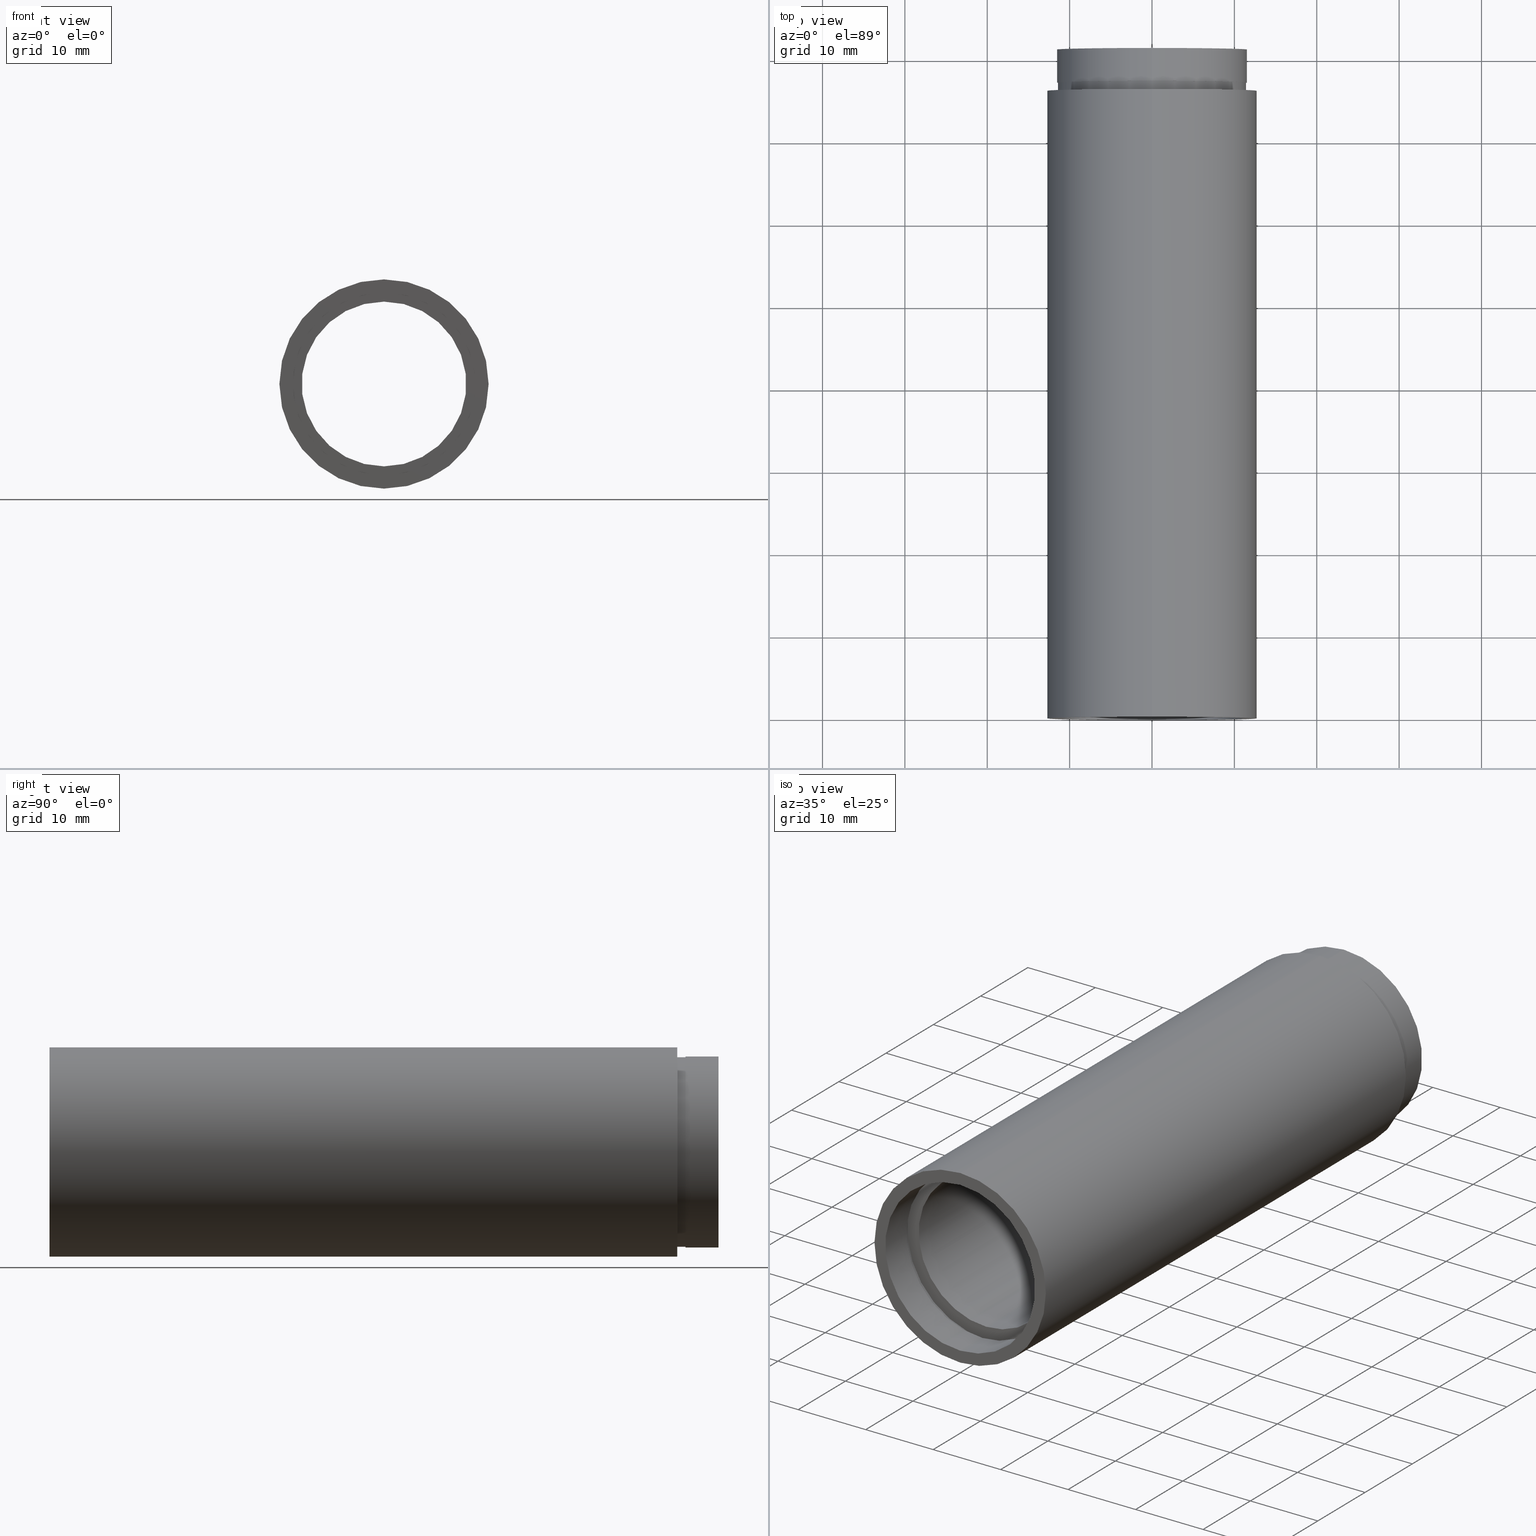
[diagram: canonical four-view strip — front | top / right | iso, engineering-drawing reading convention]
A machine part, canonical four-view strip (front | top / right | iso — engineering-drawing reading convention). The complete STEP part file that produces these views, byte-faithful:
ISO-10303-21;
HEADER;
FILE_DESCRIPTION (( 'STEP AP214' ),
    '1' );
FILE_NAME ('503055.STEP',
    '2019-09-09T01:36:41',
    ( '' ),
    ( '' ),
    'SwSTEP 2.0',
    'SolidWorks 2016',
    '' );
FILE_SCHEMA (( 'AUTOMOTIVE_DESIGN' ));
ENDSEC;

DATA;
#1 = PRESENTATION_STYLE_ASSIGNMENT (( #49 ) ) ;
#2 = DIRECTION ( 'NONE',  ( -0.0000000000000000000, 1.000000000000000000, -0.0000000000000000000 ) ) ;
#3 = ADVANCED_FACE ( 'NONE', ( #408 ), #512, .T. ) ;
#4 = STYLED_ITEM ( 'NONE', ( #308 ), #467 ) ;
#5 = ORIENTED_EDGE ( 'NONE', *, *, #114, .F. ) ;
#6 = DIRECTION ( 'NONE',  ( 0.0000000000000000000, 0.0000000000000000000, 1.000000000000000000 ) ) ;
#7 = CARTESIAN_POINT ( 'NONE',  ( 0.0000000000000000000, 161.3761669434274500, 0.0000000000000000000 ) ) ;
#8 = ORIENTED_EDGE ( 'NONE', *, *, #79, .T. ) ;
#9 = AXIS2_PLACEMENT_3D ( 'NONE', #69, #215, #347 ) ;
#10 = FACE_OUTER_BOUND ( 'NONE', #620, .T. ) ;
#11 = FILL_AREA_STYLE_COLOUR ( '', #134 ) ;
#12 = DIRECTION ( 'NONE',  ( -0.0000000000000000000, 1.000000000000000000, -0.0000000000000000000 ) ) ;
#13 = CIRCLE ( 'NONE', #193, 12.70000000000002100 ) ;
#14 = PRESENTATION_LAYER_ASSIGNMENT (  '', '', ( #363 ) ) ;
#15 = EDGE_CURVE ( 'NONE', #584, #594, #533, .T. ) ;
#16 = CARTESIAN_POINT ( 'NONE',  ( 0.0000000000000000000, 5.499999999999976900, 0.0000000000000000000 ) ) ;
#17 = ORIENTED_EDGE ( 'NONE', *, *, #432, .F. ) ;
#18 = DIRECTION ( 'NONE',  ( 0.0000000000000000000, -0.0000000000000000000, -1.000000000000000000 ) ) ;
#19 = ORIENTED_EDGE ( 'NONE', *, *, #387, .T. ) ;
#20 = CIRCLE ( 'NONE', #210, 11.10000000000001700 ) ;
#21 = AXIS2_PLACEMENT_3D ( 'NONE', #40, #43, #260 ) ;
#22 = EDGE_LOOP ( 'NONE', ( #410, #183, #547, #597 ) ) ;
#23 = CARTESIAN_POINT ( 'NONE',  ( 0.0000000000000000000, 5.499999999999976900, 0.0000000000000000000 ) ) ;
#24 = AXIS2_PLACEMENT_3D ( 'NONE', #325, #87, #369 ) ;
#25 = FACE_BOUND ( 'NONE', #529, .T. ) ;
#26 = VECTOR ( 'NONE', #583, 1000.000000000000000 ) ;
#27 = DIRECTION ( 'NONE',  ( -0.0000000000000000000, 1.000000000000000000, -0.0000000000000000000 ) ) ;
#28 = CARTESIAN_POINT ( 'NONE',  ( 0.0000000000000000000, -2.775557561562891400E-014, 0.0000000000000000000 ) ) ;
#29 = EDGE_LOOP ( 'NONE', ( #517, #451, #502, #175 ) ) ;
#30 = EDGE_CURVE ( 'NONE', #298, #33, #402, .T. ) ;
#31 = DIRECTION ( 'NONE',  ( 0.0000000000000000000, 0.0000000000000000000, 1.000000000000000000 ) ) ;
#32 = VERTEX_POINT ( 'NONE', #245 ) ;
#33 = VERTEX_POINT ( 'NONE', #523 ) ;
#34 = FACE_OUTER_BOUND ( 'NONE', #464, .T. ) ;
#35 = CARTESIAN_POINT ( 'NONE',  ( 0.0000000000000000000, 81.19999999999998900, 0.0000000000000000000 ) ) ;
#36 =( NAMED_UNIT ( * ) SI_UNIT ( $, .STERADIAN. ) SOLID_ANGLE_UNIT ( ) );
#37 = VERTEX_POINT ( 'NONE', #304 ) ;
#38 =( GEOMETRIC_REPRESENTATION_CONTEXT ( 3 ) GLOBAL_UNCERTAINTY_ASSIGNED_CONTEXT ( ( #212 ) ) GLOBAL_UNIT_ASSIGNED_CONTEXT ( ( #140, #192, #466 ) ) REPRESENTATION_CONTEXT ( 'NONE', 'WORKASPACE' ) );
#39 = ORIENTED_EDGE ( 'NONE', *, *, #377, .F. ) ;
#40 = CARTESIAN_POINT ( 'NONE',  ( 0.0000000000000000000, 161.3761669434274500, 0.0000000000000000000 ) ) ;
#41 = COLOUR_RGB ( '',1.000000000000000000, 1.000000000000000000, 1.000000000000000000 ) ;
#42 = EDGE_LOOP ( 'NONE', ( #457, #103, #111, #75 ) ) ;
#43 = DIRECTION ( 'NONE',  ( -0.0000000000000000000, 1.000000000000000000, -0.0000000000000000000 ) ) ;
#44 = STYLED_ITEM ( 'NONE', ( #371 ), #219 ) ;
#45 = COLOUR_RGB ( '',1.000000000000000000, 1.000000000000000000, 1.000000000000000000 ) ;
#46 = ORIENTED_EDGE ( 'NONE', *, *, #414, .T. ) ;
#47 = ADVANCED_FACE ( 'NONE', ( #265 ), #314, .F. ) ;
#48 = CARTESIAN_POINT ( 'NONE',  ( 11.10000000000001700, -1.580543700394483700E-014, 0.0000000000000000000 ) ) ;
#49 = SURFACE_STYLE_USAGE ( .BOTH. , #195 ) ;
#50 = STYLED_ITEM ( 'NONE', ( #71 ), #93 ) ;
#51 = EDGE_LOOP ( 'NONE', ( #409, #391, #19, #224 ) ) ;
#52 = PLANE ( 'NONE',  #404 ) ;
#53 = DIRECTION ( 'NONE',  ( -0.0000000000000000000, 1.000000000000000000, -0.0000000000000000000 ) ) ;
#54 = FACE_OUTER_BOUND ( 'NONE', #216, .T. ) ;
#55 = VERTEX_POINT ( 'NONE', #343 ) ;
#56 = CIRCLE ( 'NONE', #588, 10.00000000000002000 ) ;
#57 = UNCERTAINTY_MEASURE_WITH_UNIT (LENGTH_MEASURE( 1.000000000000000100E-005 ), #388, 'distance_accuracy_value', 'NONE');
#58 = PRODUCT_DEFINITION_FORMATION_WITH_SPECIFIED_SOURCE ( '�κ�', '', #554, .NOT_KNOWN. ) ;
#59 =( NAMED_UNIT ( * ) SI_UNIT ( $, .STERADIAN. ) SOLID_ANGLE_UNIT ( ) );
#60 = VECTOR ( 'NONE', #273, 1000.000000000000000 ) ;
#61 = FILL_AREA_STYLE_COLOUR ( '', #41 ) ;
#62 =( NAMED_UNIT ( * ) PLANE_ANGLE_UNIT ( ) SI_UNIT ( $, .RADIAN. ) );
#63 = SHAPE_DEFINITION_REPRESENTATION ( #135, #219 ) ;
#64 = ADVANCED_FACE ( 'NONE', ( #112, #532 ), #435, .F. ) ;
#65 = AXIS2_PLACEMENT_3D ( 'NONE', #7, #53, #205 ) ;
#66 = DIRECTION ( 'NONE',  ( 1.000000000000000000, 0.0000000000000000000, 0.0000000000000000000 ) ) ;
#67 = CARTESIAN_POINT ( 'NONE',  ( 0.0000000000000000000, 5.499999999999976900, 0.0000000000000000000 ) ) ;
#68 = FACE_OUTER_BOUND ( 'NONE', #419, .T. ) ;
#69 = CARTESIAN_POINT ( 'NONE',  ( 0.0000000000000000000, 4.499999999999976000, 0.0000000000000000000 ) ) ;
#70 = DIRECTION ( 'NONE',  ( -0.0000000000000000000, 1.000000000000000000, -0.0000000000000000000 ) ) ;
#71 = PRESENTATION_STYLE_ASSIGNMENT (( #342 ) ) ;
#72 = PRESENTATION_STYLE_ASSIGNMENT (( #267 ) ) ;
#73 = EDGE_CURVE ( 'NONE', #230, #543, #56, .T. ) ;
#74 = CARTESIAN_POINT ( 'NONE',  ( 0.0000000000000000000, 4.499999999999976000, 11.10000000000001700 ) ) ;
#75 = ORIENTED_EDGE ( 'NONE', *, *, #196, .T. ) ;
#76 = CARTESIAN_POINT ( 'NONE',  ( 0.0000000000000000000, 4.499999999999976000, 11.70000000000001900 ) ) ;
#77 = MECHANICAL_DESIGN_GEOMETRIC_PRESENTATION_REPRESENTATION (  '', ( #4 ), #609 ) ;
#78 = UNCERTAINTY_MEASURE_WITH_UNIT (LENGTH_MEASURE( 1.000000000000000100E-005 ), #617, 'distance_accuracy_value', 'NONE');
#79 = EDGE_CURVE ( 'NONE', #33, #298, #613, .T. ) ;
#80 = CARTESIAN_POINT ( 'NONE',  ( 1.420590287010930900E-015, 161.3761669434274500, -11.60000000000001000 ) ) ;
#81 = CIRCLE ( 'NONE', #514, 12.70000000000002100 ) ;
#82 = DIRECTION ( 'NONE',  ( -0.0000000000000000000, 1.000000000000000000, -0.0000000000000000000 ) ) ;
#83 = ORIENTED_EDGE ( 'NONE', *, *, #261, .F. ) ;
#84 = DIRECTION ( 'NONE',  ( 0.0000000000000000000, 0.0000000000000000000, 1.000000000000000000 ) ) ;
#85 = PRESENTATION_LAYER_ASSIGNMENT (  '', '', ( #50 ) ) ;
#86 = COLOUR_RGB ( '',1.000000000000000000, 1.000000000000000000, 1.000000000000000000 ) ;
#87 = DIRECTION ( 'NONE',  ( -0.0000000000000000000, 1.000000000000000000, -0.0000000000000000000 ) ) ;
#88 = ORIENTED_EDGE ( 'NONE', *, *, #209, .T. ) ;
#89 = VERTEX_POINT ( 'NONE', #297 ) ;
#90 = AXIS2_PLACEMENT_3D ( 'NONE', #599, #352, #497 ) ;
#91 = CIRCLE ( 'NONE', #382, 11.60000000000001000 ) ;
#92 = EDGE_LOOP ( 'NONE', ( #88, #303 ) ) ;
#93 = ADVANCED_FACE ( 'NONE', ( #54 ), #284, .F. ) ;
#94 = STYLED_ITEM ( 'NONE', ( #417 ), #579 ) ;
#95 = CARTESIAN_POINT ( 'NONE',  ( 0.0000000000000000000, 5.499999999999976900, 10.00000000000002000 ) ) ;
#96 = COLOUR_RGB ( '',1.000000000000000000, 1.000000000000000000, 1.000000000000000000 ) ;
#97 = ADVANCED_FACE ( 'NONE', ( #10 ), #149, .T. ) ;
#98 = ORIENTED_EDGE ( 'NONE', *, *, #291, .F. ) ;
#99 = DIRECTION ( 'NONE',  ( -0.0000000000000000000, 1.000000000000000000, -0.0000000000000000000 ) ) ;
#100 = ADVANCED_FACE ( 'NONE', ( #187, #496 ), #587, .F. ) ;
#101 = DIRECTION ( 'NONE',  ( 0.0000000000000000000, 0.0000000000000000000, 1.000000000000000000 ) ) ;
#102 = AXIS2_PLACEMENT_3D ( 'NONE', #431, #534, #302 ) ;
#103 = ORIENTED_EDGE ( 'NONE', *, *, #185, .F. ) ;
#104 =( NAMED_UNIT ( * ) SI_UNIT ( $, .STERADIAN. ) SOLID_ANGLE_UNIT ( ) );
#105 = CARTESIAN_POINT ( 'NONE',  ( 0.0000000000000000000, 77.19999999999998900, 0.0000000000000000000 ) ) ;
#106 = APPLICATION_PROTOCOL_DEFINITION ( 'draft international standard', 'automotive_design', 1998, #430 ) ;
#107 = CARTESIAN_POINT ( 'NONE',  ( 0.0000000000000000000, 5.499999999999976900, 11.70000000000001900 ) ) ;
#108 = PRESENTATION_STYLE_ASSIGNMENT (( #415 ) ) ;
#109 = ORIENTED_EDGE ( 'NONE', *, *, #209, .F. ) ;
#110 = CARTESIAN_POINT ( 'NONE',  ( 0.0000000000000000000, 161.3761669434274500, 11.10000000000001700 ) ) ;
#111 = ORIENTED_EDGE ( 'NONE', *, *, #552, .T. ) ;
#112 = FACE_BOUND ( 'NONE', #553, .T. ) ;
#113 = FACE_BOUND ( 'NONE', #326, .T. ) ;
#114 = EDGE_CURVE ( 'NONE', #470, #298, #295, .T. ) ;
#115 = CARTESIAN_POINT ( 'NONE',  ( 1.408343819019457600E-015, 161.3761669434274500, -11.50000000000001100 ) ) ;
#116 = ORIENTED_EDGE ( 'NONE', *, *, #124, .F. ) ;
#117 = CARTESIAN_POINT ( 'NONE',  ( 0.0000000000000000000, -2.775557561562891400E-014, 11.10000000000001700 ) ) ;
#118 = LINE ( 'NONE', #582, #616 ) ;
#119 = CARTESIAN_POINT ( 'NONE',  ( 0.0000000000000000000, 81.19999999999998900, 11.60000000000001000 ) ) ;
#120 = AXIS2_PLACEMENT_3D ( 'NONE', #23, #350, #595 ) ;
#121 = CARTESIAN_POINT ( 'NONE',  ( 0.0000000000000000000, 161.3761669434274500, 10.00000000000002000 ) ) ;
#122 = ORIENTED_EDGE ( 'NONE', *, *, #220, .T. ) ;
#123 = DIRECTION ( 'NONE',  ( -0.0000000000000000000, 1.000000000000000000, -0.0000000000000000000 ) ) ;
#124 = EDGE_CURVE ( 'NONE', #470, #89, #324, .T. ) ;
#125 = DIRECTION ( 'NONE',  ( -0.0000000000000000000, 1.000000000000000000, -0.0000000000000000000 ) ) ;
#126 = VECTOR ( 'NONE', #438, 1000.000000000000000 ) ;
#127 = CYLINDRICAL_SURFACE ( 'NONE', #24, 12.70000000000002100 ) ;
#128 = SURFACE_STYLE_USAGE ( .BOTH. , #562 ) ;
#129 = AXIS2_PLACEMENT_3D ( 'NONE', #144, #2, #280 ) ;
#130 = AXIS2_PLACEMENT_3D ( 'NONE', #186, #475, #84 ) ;
#131 = ORIENTED_EDGE ( 'NONE', *, *, #327, .F. ) ;
#132 = DIRECTION ( 'NONE',  ( 0.0000000000000000000, 0.0000000000000000000, 1.000000000000000000 ) ) ;
#133 = VERTEX_POINT ( 'NONE', #107 ) ;
#134 = COLOUR_RGB ( '',1.000000000000000000, 1.000000000000000000, 1.000000000000000000 ) ;
#135 = PRODUCT_DEFINITION_SHAPE ( 'NONE', 'NONE',  #516 ) ;
#136 = AXIS2_PLACEMENT_3D ( 'NONE', #105, #12, #253 ) ;
#137 = CARTESIAN_POINT ( 'NONE',  ( 1.408343819019457600E-015, 77.19999999999998900, -11.50000000000001100 ) ) ;
#138 = CYLINDRICAL_SURFACE ( 'NONE', #227, 11.10000000000001700 ) ;
#139 = VECTOR ( 'NONE', #311, 1000.000000000000000 ) ;
#140 =( LENGTH_UNIT ( ) NAMED_UNIT ( * ) SI_UNIT ( .MILLI., .METRE. ) );
#141 = EDGE_LOOP ( 'NONE', ( #312, #39 ) ) ;
#142 = AXIS2_PLACEMENT_3D ( 'NONE', #372, #573, #421 ) ;
#143 = VECTOR ( 'NONE', #313, 1000.000000000000000 ) ;
#144 = CARTESIAN_POINT ( 'NONE',  ( 0.0000000000000000000, 161.3761669434274500, 0.0000000000000000000 ) ) ;
#145 = SURFACE_SIDE_STYLE ('',( #172 ) ) ;
#146 = EDGE_CURVE ( 'NONE', #561, #340, #383, .T. ) ;
#147 = DIRECTION ( 'NONE',  ( -0.0000000000000000000, 1.000000000000000000, -0.0000000000000000000 ) ) ;
#148 = MECHANICAL_DESIGN_GEOMETRIC_PRESENTATION_REPRESENTATION (  '', ( #363 ), #506 ) ;
#149 = CYLINDRICAL_SURFACE ( 'NONE', #65, 11.50000000000001100 ) ;
#150 = CARTESIAN_POINT ( 'NONE',  ( 1.432836755002405700E-015, 5.499999999999976900, -11.70000000000001900 ) ) ;
#151 = CARTESIAN_POINT ( 'NONE',  ( 0.0000000000000000000, 81.19999999999998900, 0.0000000000000000000 ) ) ;
#152 = VECTOR ( 'NONE', #264, 1000.000000000000000 ) ;
#153 = CIRCLE ( 'NONE', #351, 11.50000000000001100 ) ;
#154 = ORIENTED_EDGE ( 'NONE', *, *, #177, .F. ) ;
#155 = CARTESIAN_POINT ( 'NONE',  ( 0.0000000000000000000, 81.19999999999998900, 0.0000000000000000000 ) ) ;
#156 = ORIENTED_EDGE ( 'NONE', *, *, #614, .T. ) ;
#157 = DIRECTION ( 'NONE',  ( 0.0000000000000000000, 0.0000000000000000000, 1.000000000000000000 ) ) ;
#158 = EDGE_CURVE ( 'NONE', #361, #32, #202, .T. ) ;
#159 =( LENGTH_UNIT ( ) NAMED_UNIT ( * ) SI_UNIT ( .MILLI., .METRE. ) );
#160 = CARTESIAN_POINT ( 'NONE',  ( 1.555301434917141000E-015, 161.3761669434274500, -12.70000000000002100 ) ) ;
#161 = EDGE_CURVE ( 'NONE', #584, #287, #550, .T. ) ;
#162 = CARTESIAN_POINT ( 'NONE',  ( 0.0000000000000000000, 77.19999999999998900, 0.0000000000000000000 ) ) ;
#163 = ORIENTED_EDGE ( 'NONE', *, *, #443, .T. ) ;
#164 =( LENGTH_UNIT ( ) NAMED_UNIT ( * ) SI_UNIT ( .MILLI., .METRE. ) );
#165 = AXIS2_PLACEMENT_3D ( 'NONE', #441, #537, #578 ) ;
#166 = AXIS2_PLACEMENT_3D ( 'NONE', #458, #564, #132 ) ;
#167 = ORIENTED_EDGE ( 'NONE', *, *, #432, .T. ) ;
#168 = DIRECTION ( 'NONE',  ( 0.0000000000000000000, 0.0000000000000000000, 1.000000000000000000 ) ) ;
#169 = VECTOR ( 'NONE', #328, 1000.000000000000000 ) ;
#170 = DIRECTION ( 'NONE',  ( -0.0000000000000000000, 1.000000000000000000, -0.0000000000000000000 ) ) ;
#171 = ORIENTED_EDGE ( 'NONE', *, *, #161, .T. ) ;
#172 = SURFACE_STYLE_FILL_AREA ( #440 ) ;
#173 = EDGE_CURVE ( 'NONE', #361, #331, #376, .T. ) ;
#174 = CARTESIAN_POINT ( 'NONE',  ( 0.0000000000000000000, -2.775557561562891400E-014, 0.0000000000000000000 ) ) ;
#175 = ORIENTED_EDGE ( 'NONE', *, *, #349, .F. ) ;
#176 = CARTESIAN_POINT ( 'NONE',  ( 1.359357947053564100E-015, -2.775557561562891400E-014, -11.10000000000001700 ) ) ;
#177 = EDGE_CURVE ( 'NONE', #217, #37, #576, .T. ) ;
#178 = CARTESIAN_POINT ( 'NONE',  ( 0.0000000000000000000, 161.3761669434274500, 0.0000000000000000000 ) ) ;
#179 = EDGE_LOOP ( 'NONE', ( #524, #600, #490, #305 ) ) ;
#180 = DIRECTION ( 'NONE',  ( 0.0000000000000000000, 0.0000000000000000000, 1.000000000000000000 ) ) ;
#181 = FACE_BOUND ( 'NONE', #141, .T. ) ;
#182 = PRESENTATION_LAYER_ASSIGNMENT (  '', '', ( #4 ) ) ;
#183 = ORIENTED_EDGE ( 'NONE', *, *, #422, .T. ) ;
#184 = ORIENTED_EDGE ( 'NONE', *, *, #291, .T. ) ;
#185 = EDGE_CURVE ( 'NONE', #287, #584, #474, .T. ) ;
#186 = CARTESIAN_POINT ( 'NONE',  ( 0.0000000000000000000, 4.499999999999976000, 0.0000000000000000000 ) ) ;
#187 = FACE_OUTER_BOUND ( 'NONE', #310, .T. ) ;
#188 = FILL_AREA_STYLE_COLOUR ( '', #520 ) ;
#189 = FACE_BOUND ( 'NONE', #92, .T. ) ;
#190 = FILL_AREA_STYLE_COLOUR ( '', #45 ) ;
#191 = UNCERTAINTY_MEASURE_WITH_UNIT (LENGTH_MEASURE( 1.000000000000000100E-005 ), #487, 'distance_accuracy_value', 'NONE');
#192 =( NAMED_UNIT ( * ) PLANE_ANGLE_UNIT ( ) SI_UNIT ( $, .RADIAN. ) );
#193 = AXIS2_PLACEMENT_3D ( 'NONE', #545, #27, #442 ) ;
#194 = EDGE_LOOP ( 'NONE', ( #493, #131 ) ) ;
#195 = SURFACE_SIDE_STYLE ('',( #459 ) ) ;
#196 = EDGE_CURVE ( 'NONE', #133, #594, #365, .T. ) ;
#197 = EDGE_LOOP ( 'NONE', ( #447, #98, #238, #163 ) ) ;
#198 = ADVANCED_FACE ( 'NONE', ( #246 ), #138, .F. ) ;
#199 = ORIENTED_EDGE ( 'NONE', *, *, #422, .F. ) ;
#200 = DIRECTION ( 'NONE',  ( 0.0000000000000000000, 0.0000000000000000000, 1.000000000000000000 ) ) ;
#201 = CARTESIAN_POINT ( 'NONE',  ( 0.0000000000000000000, 161.3761669434274500, 11.50000000000001100 ) ) ;
#202 = CIRCLE ( 'NONE', #601, 11.50000000000001100 ) ;
#203 =( NAMED_UNIT ( * ) PLANE_ANGLE_UNIT ( ) SI_UNIT ( $, .RADIAN. ) );
#204 = DIRECTION ( 'NONE',  ( 0.0000000000000000000, 0.0000000000000000000, 1.000000000000000000 ) ) ;
#205 = DIRECTION ( 'NONE',  ( 0.0000000000000000000, 0.0000000000000000000, 1.000000000000000000 ) ) ;
#206 = STYLED_ITEM ( 'NONE', ( #72 ), #198 ) ;
#207 =( NAMED_UNIT ( * ) PLANE_ANGLE_UNIT ( ) SI_UNIT ( $, .RADIAN. ) );
#208 = DIRECTION ( 'NONE',  ( 0.0000000000000000000, 0.0000000000000000000, 1.000000000000000000 ) ) ;
#209 = EDGE_CURVE ( 'NONE', #331, #478, #256, .T. ) ;
#210 = AXIS2_PLACEMENT_3D ( 'NONE', #407, #82, #180 ) ;
#211 = FILL_AREA_STYLE_COLOUR ( '', #476 ) ;
#212 = UNCERTAINTY_MEASURE_WITH_UNIT (LENGTH_MEASURE( 1.000000000000000100E-005 ), #140, 'distance_accuracy_value', 'NONE');
#213 = FILL_AREA_STYLE ('',( #494 ) ) ;
#214 = AXIS2_PLACEMENT_3D ( 'NONE', #16, #99, #157 ) ;
#215 = DIRECTION ( 'NONE',  ( -0.0000000000000000000, 1.000000000000000000, -0.0000000000000000000 ) ) ;
#216 = EDGE_LOOP ( 'NONE', ( #83, #461, #254, #46 ) ) ;
#217 = VERTEX_POINT ( 'NONE', #602 ) ;
#218 = CARTESIAN_POINT ( 'NONE',  ( 0.0000000000000000000, 161.3761669434274500, 0.0000000000000000000 ) ) ;
#219 = ADVANCED_BREP_SHAPE_REPRESENTATION ( '503055', ( #467, #495 ), #456 ) ;
#220 = EDGE_CURVE ( 'NONE', #37, #55, #13, .T. ) ;
#221 = ORIENTED_EDGE ( 'NONE', *, *, #30, .T. ) ;
#222 = DIRECTION ( 'NONE',  ( -0.0000000000000000000, 1.000000000000000000, -0.0000000000000000000 ) ) ;
#223 = AXIS2_PLACEMENT_3D ( 'NONE', #283, #479, #341 ) ;
#224 = ORIENTED_EDGE ( 'NONE', *, *, #552, .F. ) ;
#225 = DIRECTION ( 'NONE',  ( -0.0000000000000000000, 1.000000000000000000, -0.0000000000000000000 ) ) ;
#226 = DIRECTION ( 'NONE',  ( 0.0000000000000000000, 0.0000000000000000000, 1.000000000000000000 ) ) ;
#227 = AXIS2_PLACEMENT_3D ( 'NONE', #449, #222, #503 ) ;
#228 = CYLINDRICAL_SURFACE ( 'NONE', #446, 12.70000000000002100 ) ;
#229 = CARTESIAN_POINT ( 'NONE',  ( 0.0000000000000000000, 5.499999999999976900, 0.0000000000000000000 ) ) ;
#230 = VERTEX_POINT ( 'NONE', #307 ) ;
#231 = EDGE_CURVE ( 'NONE', #32, #478, #373, .T. ) ;
#232 = DIRECTION ( 'NONE',  ( -0.0000000000000000000, 1.000000000000000000, -0.0000000000000000000 ) ) ;
#233 = COLOUR_RGB ( '',1.000000000000000000, 1.000000000000000000, 1.000000000000000000 ) ;
#234 =( NAMED_UNIT ( * ) PLANE_ANGLE_UNIT ( ) SI_UNIT ( $, .RADIAN. ) );
#235 = MECHANICAL_DESIGN_GEOMETRIC_PRESENTATION_REPRESENTATION (  '', ( #94 ), #565 ) ;
#236 = CYLINDRICAL_SURFACE ( 'NONE', #129, 10.00000000000002000 ) ;
#237 = CARTESIAN_POINT ( 'NONE',  ( 1.224646799147355400E-015, 81.19999999999998900, -10.00000000000002000 ) ) ;
#238 = ORIENTED_EDGE ( 'NONE', *, *, #250, .T. ) ;
#239 = CARTESIAN_POINT ( 'NONE',  ( 11.50000000000001100, 77.19999999999998900, 0.0000000000000000000 ) ) ;
#240 = EDGE_LOOP ( 'NONE', ( #337, #289, #570, #276 ) ) ;
#241 = PRESENTATION_LAYER_ASSIGNMENT (  '', '', ( #206 ) ) ;
#242 = EDGE_CURVE ( 'NONE', #478, #331, #153, .T. ) ;
#243 = AXIS2_PLACEMENT_3D ( 'NONE', #229, #232, #275 ) ;
#244 = ORIENTED_EDGE ( 'NONE', *, *, #30, .F. ) ;
#245 = CARTESIAN_POINT ( 'NONE',  ( 1.408343819019457600E-015, 76.19999999999998900, -11.50000000000001100 ) ) ;
#246 = FACE_OUTER_BOUND ( 'NONE', #197, .T. ) ;
#247 = FACE_OUTER_BOUND ( 'NONE', #194, .T. ) ;
#248 = CARTESIAN_POINT ( 'NONE',  ( 0.0000000000000000000, 77.19999999999998900, 0.0000000000000000000 ) ) ;
#249 = CARTESIAN_POINT ( 'NONE',  ( 0.0000000000000000000, 161.3761669434274500, 11.60000000000001000 ) ) ;
#250 = EDGE_CURVE ( 'NONE', #319, #263, #397, .T. ) ;
#251 = ADVANCED_FACE ( 'NONE', ( #411 ), #228, .T. ) ;
#252 = SURFACE_STYLE_USAGE ( .BOTH. , #540 ) ;
#253 = DIRECTION ( 'NONE',  ( 0.0000000000000000000, 0.0000000000000000000, 1.000000000000000000 ) ) ;
#254 = ORIENTED_EDGE ( 'NONE', *, *, #368, .T. ) ;
#255 = APPLICATION_CONTEXT ( 'automotive_design' ) ;
#256 = CIRCLE ( 'NONE', #300, 11.50000000000001100 ) ;
#257 =( NAMED_UNIT ( * ) SI_UNIT ( $, .STERADIAN. ) SOLID_ANGLE_UNIT ( ) );
#258 = FILL_AREA_STYLE ('',( #211 ) ) ;
#259 = UNCERTAINTY_MEASURE_WITH_UNIT (LENGTH_MEASURE( 1.000000000000000100E-005 ), #292, 'distance_accuracy_value', 'NONE');
#260 = DIRECTION ( 'NONE',  ( 0.0000000000000000000, 0.0000000000000000000, 1.000000000000000000 ) ) ;
#261 = EDGE_CURVE ( 'NONE', #230, #561, #316, .T. ) ;
#262 =( NAMED_UNIT ( * ) PLANE_ANGLE_UNIT ( ) SI_UNIT ( $, .RADIAN. ) );
#263 = VERTEX_POINT ( 'NONE', #74 ) ;
#264 = DIRECTION ( 'NONE',  ( -0.0000000000000000000, 1.000000000000000000, -0.0000000000000000000 ) ) ;
#265 = FACE_OUTER_BOUND ( 'NONE', #42, .T. ) ;
#266 = FACE_OUTER_BOUND ( 'NONE', #240, .T. ) ;
#267 = SURFACE_STYLE_USAGE ( .BOTH. , #354 ) ;
#268 = PRESENTATION_LAYER_ASSIGNMENT (  '', '', ( #44 ) ) ;
#269 = AXIS2_PLACEMENT_3D ( 'NONE', #239, #332, #6 ) ;
#270 = CYLINDRICAL_SURFACE ( 'NONE', #165, 11.60000000000001000 ) ;
#271 = PRESENTATION_STYLE_ASSIGNMENT (( #252 ) ) ;
#272 =( GEOMETRIC_REPRESENTATION_CONTEXT ( 3 ) GLOBAL_UNCERTAINTY_ASSIGNED_CONTEXT ( ( #359 ) ) GLOBAL_UNIT_ASSIGNED_CONTEXT ( ( #164, #401, #492 ) ) REPRESENTATION_CONTEXT ( 'NONE', 'WORKASPACE' ) );
#273 = DIRECTION ( 'NONE',  ( -0.0000000000000000000, 1.000000000000000000, -0.0000000000000000000 ) ) ;
#274 = CIRCLE ( 'NONE', #473, 11.10000000000001700 ) ;
#275 = DIRECTION ( 'NONE',  ( 0.0000000000000000000, 0.0000000000000000000, 1.000000000000000000 ) ) ;
#276 = ORIENTED_EDGE ( 'NONE', *, *, #368, .F. ) ;
#277 = DIRECTION ( 'NONE',  ( -0.0000000000000000000, 1.000000000000000000, -0.0000000000000000000 ) ) ;
#278 = AXIS2_PLACEMENT_3D ( 'NONE', #380, #590, #18 ) ;
#279 = CIRCLE ( 'NONE', #546, 12.70000000000002100 ) ;
#280 = DIRECTION ( 'NONE',  ( 0.0000000000000000000, 0.0000000000000000000, 1.000000000000000000 ) ) ;
#281 = AXIS2_PLACEMENT_3D ( 'NONE', #288, #379, #568 ) ;
#282 = CARTESIAN_POINT ( 'NONE',  ( 0.0000000000000000000, 77.19999999999998900, 11.60000000000001000 ) ) ;
#283 = CARTESIAN_POINT ( 'NONE',  ( 0.0000000000000000000, 161.3761669434274500, 0.0000000000000000000 ) ) ;
#284 = CYLINDRICAL_SURFACE ( 'NONE', #622, 10.00000000000002000 ) ;
#285 = AXIS2_PLACEMENT_3D ( 'NONE', #364, #412, #515 ) ;
#286 = FACE_OUTER_BOUND ( 'NONE', #612, .T. ) ;
#287 = VERTEX_POINT ( 'NONE', #76 ) ;
#288 = CARTESIAN_POINT ( 'NONE',  ( 0.0000000000000000000, 161.3761669434274500, 0.0000000000000000000 ) ) ;
#289 = ORIENTED_EDGE ( 'NONE', *, *, #261, .T. ) ;
#290 = CIRCLE ( 'NONE', #615, 10.00000000000002000 ) ;
#291 = EDGE_CURVE ( 'NONE', #319, #381, #274, .T. ) ;
#292 =( LENGTH_UNIT ( ) NAMED_UNIT ( * ) SI_UNIT ( .MILLI., .METRE. ) );
#293 = AXIS2_PLACEMENT_3D ( 'NONE', #367, #526, #418 ) ;
#294 = DIRECTION ( 'NONE',  ( 0.0000000000000000000, -0.0000000000000000000, -1.000000000000000000 ) ) ;
#295 = LINE ( 'NONE', #249, #26 ) ;
#296 = SURFACE_STYLE_USAGE ( .BOTH. , #536 ) ;
#297 = CARTESIAN_POINT ( 'NONE',  ( 1.420590287010930900E-015, 77.19999999999998900, -11.60000000000001000 ) ) ;
#298 = VERTEX_POINT ( 'NONE', #119 ) ;
#299 = PRODUCT_CONTEXT ( 'NONE', #255, 'mechanical' ) ;
#300 = AXIS2_PLACEMENT_3D ( 'NONE', #162, #170, #598 ) ;
#301 = CARTESIAN_POINT ( 'NONE',  ( 0.0000000000000000000, 0.0000000000000000000, 0.0000000000000000000 ) ) ;
#302 = DIRECTION ( 'NONE',  ( 0.0000000000000000000, 0.0000000000000000000, 1.000000000000000000 ) ) ;
#303 = ORIENTED_EDGE ( 'NONE', *, *, #242, .T. ) ;
#304 = CARTESIAN_POINT ( 'NONE',  ( 1.555301434917141000E-015, 76.19999999999998900, -12.70000000000002100 ) ) ;
#305 = ORIENTED_EDGE ( 'NONE', *, *, #79, .F. ) ;
#306 =( NAMED_UNIT ( * ) SI_UNIT ( $, .STERADIAN. ) SOLID_ANGLE_UNIT ( ) );
#307 = CARTESIAN_POINT ( 'NONE',  ( 1.224646799147355400E-015, 5.499999999999976900, -10.00000000000002000 ) ) ;
#308 = PRESENTATION_STYLE_ASSIGNMENT (( #128 ) ) ;
#309 = PRODUCT_RELATED_PRODUCT_CATEGORY ( 'part', '', ( #554 ) ) ;
#310 = EDGE_LOOP ( 'NONE', ( #469, #444 ) ) ;
#311 = DIRECTION ( 'NONE',  ( -0.0000000000000000000, 1.000000000000000000, -0.0000000000000000000 ) ) ;
#312 = ORIENTED_EDGE ( 'NONE', *, *, #443, .F. ) ;
#313 = DIRECTION ( 'NONE',  ( -0.0000000000000000000, 1.000000000000000000, -0.0000000000000000000 ) ) ;
#314 = CYLINDRICAL_SURFACE ( 'NONE', #21, 11.70000000000001900 ) ;
#315 = AXIS2_PLACEMENT_3D ( 'NONE', #392, #488, #429 ) ;
#316 = LINE ( 'NONE', #549, #535 ) ;
#317 = CARTESIAN_POINT ( 'NONE',  ( 1.359357947053564100E-015, 4.499999999999976000, -11.10000000000001700 ) ) ;
#318 = DIRECTION ( 'NONE',  ( 0.0000000000000000000, 0.0000000000000000000, 1.000000000000000000 ) ) ;
#319 = VERTEX_POINT ( 'NONE', #117 ) ;
#320 = AXIS2_PLACEMENT_3D ( 'NONE', #151, #528, #389 ) ;
#321 = ORIENTED_EDGE ( 'NONE', *, *, #231, .T. ) ;
#322 = ORIENTED_EDGE ( 'NONE', *, *, #414, .F. ) ;
#323 = SURFACE_SIDE_STYLE ('',( #455 ) ) ;
#324 = CIRCLE ( 'NONE', #136, 11.60000000000001000 ) ;
#325 = CARTESIAN_POINT ( 'NONE',  ( 0.0000000000000000000, 161.3761669434274500, 0.0000000000000000000 ) ) ;
#326 = EDGE_LOOP ( 'NONE', ( #184, #167 ) ) ;
#327 = EDGE_CURVE ( 'NONE', #217, #611, #81, .T. ) ;
#328 = DIRECTION ( 'NONE',  ( -0.0000000000000000000, 1.000000000000000000, -0.0000000000000000000 ) ) ;
#329 = VECTOR ( 'NONE', #605, 1000.000000000000000 ) ;
#330 = PRESENTATION_LAYER_ASSIGNMENT (  '', '', ( #426 ) ) ;
#331 = VERTEX_POINT ( 'NONE', #358 ) ;
#332 = DIRECTION ( 'NONE',  ( -0.0000000000000000000, 1.000000000000000000, 0.0000000000000000000 ) ) ;
#333 = FILL_AREA_STYLE_COLOUR ( '', #233 ) ;
#334 = CARTESIAN_POINT ( 'NONE',  ( 0.0000000000000000000, 161.3761669434274500, 11.70000000000001900 ) ) ;
#335 =( NAMED_UNIT ( * ) PLANE_ANGLE_UNIT ( ) SI_UNIT ( $, .RADIAN. ) );
#336 = MECHANICAL_DESIGN_GEOMETRIC_PRESENTATION_REPRESENTATION (  '', ( #50 ), #501 ) ;
#337 = ORIENTED_EDGE ( 'NONE', *, *, #73, .F. ) ;
#338 = DIRECTION ( 'NONE',  ( 0.0000000000000000000, 0.0000000000000000000, 1.000000000000000000 ) ) ;
#339 = MECHANICAL_DESIGN_GEOMETRIC_PRESENTATION_REPRESENTATION (  '', ( #44 ), #596 ) ;
#340 = VERTEX_POINT ( 'NONE', #362 ) ;
#341 = DIRECTION ( 'NONE',  ( 0.0000000000000000000, 0.0000000000000000000, 1.000000000000000000 ) ) ;
#342 = SURFACE_STYLE_USAGE ( .BOTH. , #145 ) ;
#343 = CARTESIAN_POINT ( 'NONE',  ( 0.0000000000000000000, 76.19999999999998900, 12.70000000000002100 ) ) ;
#344 = APPLICATION_PROTOCOL_DEFINITION ( 'draft international standard', 'automotive_design', 1998, #255 ) ;
#345 = FILL_AREA_STYLE_COLOUR ( '', #96 ) ;
#346 = DIRECTION ( 'NONE',  ( 0.0000000000000000000, 0.0000000000000000000, 1.000000000000000000 ) ) ;
#347 = DIRECTION ( 'NONE',  ( 0.0000000000000000000, 0.0000000000000000000, 1.000000000000000000 ) ) ;
#348 = ORIENTED_EDGE ( 'NONE', *, *, #220, .F. ) ;
#349 = EDGE_CURVE ( 'NONE', #611, #55, #525, .T. ) ;
#350 = DIRECTION ( 'NONE',  ( -0.0000000000000000000, 1.000000000000000000, -0.0000000000000000000 ) ) ;
#351 = AXIS2_PLACEMENT_3D ( 'NONE', #399, #355, #398 ) ;
#352 = DIRECTION ( 'NONE',  ( -0.0000000000000000000, 1.000000000000000000, -0.0000000000000000000 ) ) ;
#353 = FACE_OUTER_BOUND ( 'NONE', #624, .T. ) ;
#354 = SURFACE_SIDE_STYLE ('',( #448 ) ) ;
#355 = DIRECTION ( 'NONE',  ( -0.0000000000000000000, 1.000000000000000000, -0.0000000000000000000 ) ) ;
#356 = EDGE_CURVE ( 'NONE', #611, #217, #279, .T. ) ;
#357 = VECTOR ( 'NONE', #505, 1000.000000000000000 ) ;
#358 = CARTESIAN_POINT ( 'NONE',  ( 0.0000000000000000000, 77.19999999999998900, 11.50000000000001100 ) ) ;
#359 = UNCERTAINTY_MEASURE_WITH_UNIT (LENGTH_MEASURE( 1.000000000000000100E-005 ), #164, 'distance_accuracy_value', 'NONE');
#360 = VERTEX_POINT ( 'NONE', #317 ) ;
#361 = VERTEX_POINT ( 'NONE', #556 ) ;
#362 = CARTESIAN_POINT ( 'NONE',  ( 0.0000000000000000000, 81.19999999999998900, 10.00000000000002000 ) ) ;
#363 = STYLED_ITEM ( 'NONE', ( #108 ), #527 ) ;
#364 = CARTESIAN_POINT ( 'NONE',  ( 0.0000000000000000000, 76.19999999999998900, 0.0000000000000000000 ) ) ;
#365 = CIRCLE ( 'NONE', #120, 11.70000000000001900 ) ;
#366 = LINE ( 'NONE', #334, #498 ) ;
#367 = CARTESIAN_POINT ( 'NONE',  ( 0.0000000000000000000, -2.775557561562891400E-014, 0.0000000000000000000 ) ) ;
#368 = EDGE_CURVE ( 'NONE', #543, #340, #566, .T. ) ;
#369 = DIRECTION ( 'NONE',  ( 0.0000000000000000000, 0.0000000000000000000, 1.000000000000000000 ) ) ;
#370 = ORIENTED_EDGE ( 'NONE', *, *, #453, .T. ) ;
#371 = PRESENTATION_STYLE_ASSIGNMENT (( #593 ) ) ;
#372 = CARTESIAN_POINT ( 'NONE',  ( 11.10000000000001700, 4.499999999999983100, 0.0000000000000000000 ) ) ;
#373 = LINE ( 'NONE', #115, #143 ) ;
#374 = ORIENTED_EDGE ( 'NONE', *, *, #349, .T. ) ;
#375 = EDGE_LOOP ( 'NONE', ( #156, #406 ) ) ;
#376 = LINE ( 'NONE', #201, #126 ) ;
#377 = EDGE_CURVE ( 'NONE', #360, #263, #20, .T. ) ;
#378 = ADVANCED_FACE ( 'NONE', ( #555 ), #607, .T. ) ;
#379 = DIRECTION ( 'NONE',  ( -0.0000000000000000000, 1.000000000000000000, -0.0000000000000000000 ) ) ;
#380 = CARTESIAN_POINT ( 'NONE',  ( 12.70000000000002100, 76.19999999999998900, 0.0000000000000000000 ) ) ;
#381 = VERTEX_POINT ( 'NONE', #176 ) ;
#382 = AXIS2_PLACEMENT_3D ( 'NONE', #248, #557, #200 ) ;
#383 = CIRCLE ( 'NONE', #559, 10.00000000000002000 ) ;
#384 = FILL_AREA_STYLE ('',( #61 ) ) ;
#385 = ADVANCED_FACE ( 'NONE', ( #623 ), #507, .F. ) ;
#386 = CARTESIAN_POINT ( 'NONE',  ( 0.0000000000000000000, 161.3761669434274500, 0.0000000000000000000 ) ) ;
#387 = EDGE_CURVE ( 'NONE', #594, #133, #433, .T. ) ;
#388 =( LENGTH_UNIT ( ) NAMED_UNIT ( * ) SI_UNIT ( .MILLI., .METRE. ) );
#389 = DIRECTION ( 'NONE',  ( 0.0000000000000000000, 0.0000000000000000000, 1.000000000000000000 ) ) ;
#390 = CARTESIAN_POINT ( 'NONE',  ( 1.432836755002405700E-015, 4.499999999999976000, -11.70000000000001900 ) ) ;
#391 = ORIENTED_EDGE ( 'NONE', *, *, #15, .T. ) ;
#392 = CARTESIAN_POINT ( 'NONE',  ( 0.0000000000000000000, 81.19999999999998900, 0.0000000000000000000 ) ) ;
#393 = AXIS2_PLACEMENT_3D ( 'NONE', #178, #277, #226 ) ;
#394 = ORIENTED_EDGE ( 'NONE', *, *, #250, .F. ) ;
#395 = DIRECTION ( 'NONE',  ( -0.0000000000000000000, 1.000000000000000000, -0.0000000000000000000 ) ) ;
#396 = PRESENTATION_LAYER_ASSIGNMENT (  '', '', ( #94 ) ) ;
#397 = LINE ( 'NONE', #110, #139 ) ;
#398 = DIRECTION ( 'NONE',  ( 0.0000000000000000000, 0.0000000000000000000, 1.000000000000000000 ) ) ;
#399 = CARTESIAN_POINT ( 'NONE',  ( 0.0000000000000000000, 77.19999999999998900, 0.0000000000000000000 ) ) ;
#400 = EDGE_CURVE ( 'NONE', #89, #33, #405, .T. ) ;
#401 =( NAMED_UNIT ( * ) PLANE_ANGLE_UNIT ( ) SI_UNIT ( $, .RADIAN. ) );
#402 = CIRCLE ( 'NONE', #320, 11.60000000000001000 ) ;
#403 = DIRECTION ( 'NONE',  ( 0.0000000000000000000, 0.0000000000000000000, 1.000000000000000000 ) ) ;
#404 = AXIS2_PLACEMENT_3D ( 'NONE', #48, #428, #338 ) ;
#405 = LINE ( 'NONE', #80, #329 ) ;
#406 = ORIENTED_EDGE ( 'NONE', *, *, #73, .T. ) ;
#407 = CARTESIAN_POINT ( 'NONE',  ( 0.0000000000000000000, 4.499999999999976000, 0.0000000000000000000 ) ) ;
#408 = FACE_OUTER_BOUND ( 'NONE', #179, .T. ) ;
#409 = ORIENTED_EDGE ( 'NONE', *, *, #161, .F. ) ;
#410 = ORIENTED_EDGE ( 'NONE', *, *, #231, .F. ) ;
#411 = FACE_OUTER_BOUND ( 'NONE', #29, .T. ) ;
#412 = DIRECTION ( 'NONE',  ( -0.0000000000000000000, 1.000000000000000000, -0.0000000000000000000 ) ) ;
#413 = EDGE_LOOP ( 'NONE', ( #370, #122 ) ) ;
#414 = EDGE_CURVE ( 'NONE', #340, #561, #290, .T. ) ;
#415 = SURFACE_STYLE_USAGE ( .BOTH. , #323 ) ;
#416 = ORIENTED_EDGE ( 'NONE', *, *, #571, .T. ) ;
#417 = PRESENTATION_STYLE_ASSIGNMENT (( #296 ) ) ;
#418 = DIRECTION ( 'NONE',  ( 0.0000000000000000000, 0.0000000000000000000, 1.000000000000000000 ) ) ;
#419 = EDGE_LOOP ( 'NONE', ( #427, #171 ) ) ;
#420 = ORIENTED_EDGE ( 'NONE', *, *, #158, .T. ) ;
#421 = DIRECTION ( 'NONE',  ( 0.0000000000000000000, -0.0000000000000000000, -1.000000000000000000 ) ) ;
#422 = EDGE_CURVE ( 'NONE', #32, #361, #592, .T. ) ;
#423 = FILL_AREA_STYLE ('',( #333 ) ) ;
#424 = FACE_OUTER_BOUND ( 'NONE', #434, .T. ) ;
#425 = AXIS2_PLACEMENT_3D ( 'NONE', #610, #225, #508 ) ;
#426 = STYLED_ITEM ( 'NONE', ( #271 ), #572 ) ;
#427 = ORIENTED_EDGE ( 'NONE', *, *, #185, .T. ) ;
#428 = DIRECTION ( 'NONE',  ( -0.0000000000000000000, 1.000000000000000000, 0.0000000000000000000 ) ) ;
#429 = DIRECTION ( 'NONE',  ( 0.0000000000000000000, 0.0000000000000000000, 1.000000000000000000 ) ) ;
#430 = APPLICATION_CONTEXT ( 'automotive_design' ) ;
#431 = CARTESIAN_POINT ( 'NONE',  ( 11.70000000000001900, 5.499999999999982200, 0.0000000000000000000 ) ) ;
#432 = EDGE_CURVE ( 'NONE', #381, #319, #560, .T. ) ;
#433 = CIRCLE ( 'NONE', #243, 11.70000000000001900 ) ;
#434 = EDGE_LOOP ( 'NONE', ( #563, #538, #244, #5 ) ) ;
#435 = PLANE ( 'NONE',  #513 ) ;
#436 = ADVANCED_FACE ( 'NONE', ( #286, #189 ), #606, .F. ) ;
#437 = CARTESIAN_POINT ( 'NONE',  ( 0.0000000000000000000, -2.775557561562891400E-014, 12.70000000000002100 ) ) ;
#438 = DIRECTION ( 'NONE',  ( -0.0000000000000000000, 1.000000000000000000, -0.0000000000000000000 ) ) ;
#439 = FILL_AREA_STYLE ('',( #11 ) ) ;
#440 = FILL_AREA_STYLE ('',( #345 ) ) ;
#441 = CARTESIAN_POINT ( 'NONE',  ( 0.0000000000000000000, 161.3761669434274500, 0.0000000000000000000 ) ) ;
#442 = DIRECTION ( 'NONE',  ( 0.0000000000000000000, 0.0000000000000000000, 1.000000000000000000 ) ) ;
#443 = EDGE_CURVE ( 'NONE', #263, #360, #468, .T. ) ;
#444 = ORIENTED_EDGE ( 'NONE', *, *, #387, .F. ) ;
#445 = DIRECTION ( 'NONE',  ( -0.0000000000000000000, 1.000000000000000000, -0.0000000000000000000 ) ) ;
#446 = AXIS2_PLACEMENT_3D ( 'NONE', #218, #70, #168 ) ;
#447 = ORIENTED_EDGE ( 'NONE', *, *, #571, .F. ) ;
#448 = SURFACE_STYLE_FILL_AREA ( #213 ) ;
#449 = CARTESIAN_POINT ( 'NONE',  ( 0.0000000000000000000, 161.3761669434274500, 0.0000000000000000000 ) ) ;
#450 = UNCERTAINTY_MEASURE_WITH_UNIT (LENGTH_MEASURE( 1.000000000000000100E-005 ), #159, 'distance_accuracy_value', 'NONE');
#451 = ORIENTED_EDGE ( 'NONE', *, *, #177, .T. ) ;
#452 = CARTESIAN_POINT ( 'NONE',  ( 0.0000000000000000000, -2.775557561562891400E-014, 0.0000000000000000000 ) ) ;
#453 = EDGE_CURVE ( 'NONE', #55, #37, #486, .T. ) ;
#454 = DIRECTION ( 'NONE',  ( -0.0000000000000000000, 1.000000000000000000, -0.0000000000000000000 ) ) ;
#455 = SURFACE_STYLE_FILL_AREA ( #558 ) ;
#456 =( GEOMETRIC_REPRESENTATION_CONTEXT ( 3 ) GLOBAL_UNCERTAINTY_ASSIGNED_CONTEXT ( ( #57 ) ) GLOBAL_UNIT_ASSIGNED_CONTEXT ( ( #388, #262, #306 ) ) REPRESENTATION_CONTEXT ( 'NONE', 'WORKASPACE' ) );
#457 = ORIENTED_EDGE ( 'NONE', *, *, #15, .F. ) ;
#458 = CARTESIAN_POINT ( 'NONE',  ( 0.0000000000000000000, 76.19999999999998900, 0.0000000000000000000 ) ) ;
#459 = SURFACE_STYLE_FILL_AREA ( #423 ) ;
#460 = DIRECTION ( 'NONE',  ( -0.0000000000000000000, 1.000000000000000000, -0.0000000000000000000 ) ) ;
#461 = ORIENTED_EDGE ( 'NONE', *, *, #614, .F. ) ;
#462 = EDGE_CURVE ( 'NONE', #89, #470, #91, .T. ) ;
#463 =( NAMED_UNIT ( * ) SI_UNIT ( $, .STERADIAN. ) SOLID_ANGLE_UNIT ( ) );
#464 = EDGE_LOOP ( 'NONE', ( #154, #569, #374, #348 ) ) ;
#465 = PLANE ( 'NONE',  #142 ) ;
#466 =( NAMED_UNIT ( * ) SI_UNIT ( $, .STERADIAN. ) SOLID_ANGLE_UNIT ( ) );
#467 = MANIFOLD_SOLID_BREP ( '��ת1', #489 ) ;
#468 = CIRCLE ( 'NONE', #130, 11.10000000000001700 ) ;
#469 = ORIENTED_EDGE ( 'NONE', *, *, #196, .F. ) ;
#470 = VERTEX_POINT ( 'NONE', #282 ) ;
#471 = ADVANCED_FACE ( 'NONE', ( #181, #68 ), #465, .F. ) ;
#472 = MECHANICAL_DESIGN_GEOMETRIC_PRESENTATION_REPRESENTATION (  '', ( #484 ), #38 ) ;
#473 = AXIS2_PLACEMENT_3D ( 'NONE', #28, #123, #403 ) ;
#474 = CIRCLE ( 'NONE', #9, 11.70000000000001900 ) ;
#475 = DIRECTION ( 'NONE',  ( -0.0000000000000000000, 1.000000000000000000, -0.0000000000000000000 ) ) ;
#476 = COLOUR_RGB ( '',1.000000000000000000, 1.000000000000000000, 1.000000000000000000 ) ;
#477 = DIRECTION ( 'NONE',  ( -0.0000000000000000000, 1.000000000000000000, -0.0000000000000000000 ) ) ;
#478 = VERTEX_POINT ( 'NONE', #137 ) ;
#479 = DIRECTION ( 'NONE',  ( -0.0000000000000000000, 1.000000000000000000, -0.0000000000000000000 ) ) ;
#480 = SURFACE_STYLE_FILL_AREA ( #439 ) ;
#481 = DIRECTION ( 'NONE',  ( -0.0000000000000000000, 1.000000000000000000, -0.0000000000000000000 ) ) ;
#482 = SURFACE_SIDE_STYLE ('',( #585 ) ) ;
#483 = DIRECTION ( 'NONE',  ( -0.0000000000000000000, 1.000000000000000000, -0.0000000000000000000 ) ) ;
#484 = STYLED_ITEM ( 'NONE', ( #1 ), #3 ) ;
#485 = ADVANCED_FACE ( 'NONE', ( #34 ), #127, .T. ) ;
#486 = CIRCLE ( 'NONE', #166, 12.70000000000002100 ) ;
#487 =( LENGTH_UNIT ( ) NAMED_UNIT ( * ) SI_UNIT ( .MILLI., .METRE. ) );
#488 = DIRECTION ( 'NONE',  ( -0.0000000000000000000, 1.000000000000000000, -0.0000000000000000000 ) ) ;
#489 = CLOSED_SHELL ( 'NONE', ( #572, #385, #527, #579, #97, #251, #567, #485, #586, #378, #436, #3, #64, #93, #100, #47, #471, #198 ) ) ;
#490 = ORIENTED_EDGE ( 'NONE', *, *, #114, .T. ) ;
#491 = PLANE ( 'NONE',  #278 ) ;
#492 =( NAMED_UNIT ( * ) SI_UNIT ( $, .STERADIAN. ) SOLID_ANGLE_UNIT ( ) );
#493 = ORIENTED_EDGE ( 'NONE', *, *, #356, .F. ) ;
#494 = FILL_AREA_STYLE_COLOUR ( '', #86 ) ;
#495 = AXIS2_PLACEMENT_3D ( 'NONE', #301, #346, #66 ) ;
#496 = FACE_BOUND ( 'NONE', #375, .T. ) ;
#497 = DIRECTION ( 'NONE',  ( 0.0000000000000000000, 0.0000000000000000000, 1.000000000000000000 ) ) ;
#498 = VECTOR ( 'NONE', #460, 1000.000000000000000 ) ;
#499 = EDGE_LOOP ( 'NONE', ( #221, #8 ) ) ;
#500 = DIRECTION ( 'NONE',  ( 0.0000000000000000000, 0.0000000000000000000, 1.000000000000000000 ) ) ;
#501 =( GEOMETRIC_REPRESENTATION_CONTEXT ( 3 ) GLOBAL_UNCERTAINTY_ASSIGNED_CONTEXT ( ( #539 ) ) GLOBAL_UNIT_ASSIGNED_CONTEXT ( ( #531, #335, #575 ) ) REPRESENTATION_CONTEXT ( 'NONE', 'WORKASPACE' ) );
#502 = ORIENTED_EDGE ( 'NONE', *, *, #453, .F. ) ;
#503 = DIRECTION ( 'NONE',  ( 0.0000000000000000000, 0.0000000000000000000, 1.000000000000000000 ) ) ;
#504 = CIRCLE ( 'NONE', #214, 10.00000000000002000 ) ;
#505 = DIRECTION ( 'NONE',  ( -0.0000000000000000000, 1.000000000000000000, -0.0000000000000000000 ) ) ;
#506 =( GEOMETRIC_REPRESENTATION_CONTEXT ( 3 ) GLOBAL_UNCERTAINTY_ASSIGNED_CONTEXT ( ( #259 ) ) GLOBAL_UNIT_ASSIGNED_CONTEXT ( ( #292, #519, #463 ) ) REPRESENTATION_CONTEXT ( 'NONE', 'WORKASPACE' ) );
#507 = CYLINDRICAL_SURFACE ( 'NONE', #425, 11.70000000000001900 ) ;
#508 = DIRECTION ( 'NONE',  ( 0.0000000000000000000, 0.0000000000000000000, 1.000000000000000000 ) ) ;
#509 = DIRECTION ( 'NONE',  ( -0.0000000000000000000, 1.000000000000000000, -0.0000000000000000000 ) ) ;
#510 = CARTESIAN_POINT ( 'NONE',  ( 0.0000000000000000000, 161.3761669434274500, 12.70000000000002100 ) ) ;
#511 = DIRECTION ( 'NONE',  ( 0.0000000000000000000, 0.0000000000000000000, 1.000000000000000000 ) ) ;
#512 = CYLINDRICAL_SURFACE ( 'NONE', #281, 11.60000000000001000 ) ;
#513 = AXIS2_PLACEMENT_3D ( 'NONE', #591, #580, #294 ) ;
#514 = AXIS2_PLACEMENT_3D ( 'NONE', #174, #454, #31 ) ;
#515 = DIRECTION ( 'NONE',  ( 0.0000000000000000000, 0.0000000000000000000, 1.000000000000000000 ) ) ;
#516 = PRODUCT_DEFINITION ( 'δ֪', '', #58, #551 ) ;
#517 = ORIENTED_EDGE ( 'NONE', *, *, #356, .T. ) ;
#518 = FILL_AREA_STYLE ('',( #188 ) ) ;
#519 =( NAMED_UNIT ( * ) PLANE_ANGLE_UNIT ( ) SI_UNIT ( $, .RADIAN. ) );
#520 = COLOUR_RGB ( '',1.000000000000000000, 1.000000000000000000, 1.000000000000000000 ) ;
#521 = CARTESIAN_POINT ( 'NONE',  ( 1.432836755002405700E-015, 161.3761669434274500, -11.70000000000001900 ) ) ;
#522 = MECHANICAL_DESIGN_GEOMETRIC_PRESENTATION_REPRESENTATION (  '', ( #206 ), #272 ) ;
#523 = CARTESIAN_POINT ( 'NONE',  ( 1.420590287010930900E-015, 81.19999999999998900, -11.60000000000001000 ) ) ;
#524 = ORIENTED_EDGE ( 'NONE', *, *, #400, .F. ) ;
#525 = LINE ( 'NONE', #510, #60 ) ;
#526 = DIRECTION ( 'NONE',  ( -0.0000000000000000000, 1.000000000000000000, -0.0000000000000000000 ) ) ;
#527 = ADVANCED_FACE ( 'NONE', ( #266 ), #236, .F. ) ;
#528 = DIRECTION ( 'NONE',  ( -0.0000000000000000000, 1.000000000000000000, -0.0000000000000000000 ) ) ;
#529 = EDGE_LOOP ( 'NONE', ( #603, #199 ) ) ;
#530 =( LENGTH_UNIT ( ) NAMED_UNIT ( * ) SI_UNIT ( .MILLI., .METRE. ) );
#531 =( LENGTH_UNIT ( ) NAMED_UNIT ( * ) SI_UNIT ( .MILLI., .METRE. ) );
#532 = FACE_OUTER_BOUND ( 'NONE', #499, .T. ) ;
#533 = LINE ( 'NONE', #521, #169 ) ;
#534 = DIRECTION ( 'NONE',  ( -0.0000000000000000000, 1.000000000000000000, 0.0000000000000000000 ) ) ;
#535 = VECTOR ( 'NONE', #445, 1000.000000000000000 ) ;
#536 = SURFACE_SIDE_STYLE ('',( #480 ) ) ;
#537 = DIRECTION ( 'NONE',  ( -0.0000000000000000000, 1.000000000000000000, -0.0000000000000000000 ) ) ;
#538 = ORIENTED_EDGE ( 'NONE', *, *, #400, .T. ) ;
#539 = UNCERTAINTY_MEASURE_WITH_UNIT (LENGTH_MEASURE( 1.000000000000000100E-005 ), #531, 'distance_accuracy_value', 'NONE');
#540 = SURFACE_SIDE_STYLE ('',( #621 ) ) ;
#541 = CARTESIAN_POINT ( 'NONE',  ( 0.0000000000000000000, 76.19999999999998900, 0.0000000000000000000 ) ) ;
#542 = SURFACE_STYLE_FILL_AREA ( #518 ) ;
#543 = VERTEX_POINT ( 'NONE', #95 ) ;
#544 = PRESENTATION_LAYER_ASSIGNMENT (  '', '', ( #484 ) ) ;
#545 = CARTESIAN_POINT ( 'NONE',  ( 0.0000000000000000000, 76.19999999999998900, 0.0000000000000000000 ) ) ;
#546 = AXIS2_PLACEMENT_3D ( 'NONE', #452, #125, #511 ) ;
#547 = ORIENTED_EDGE ( 'NONE', *, *, #173, .T. ) ;
#548 = CYLINDRICAL_SURFACE ( 'NONE', #223, 11.10000000000001700 ) ;
#549 = CARTESIAN_POINT ( 'NONE',  ( 1.224646799147355400E-015, 161.3761669434274500, -10.00000000000002000 ) ) ;
#550 = CIRCLE ( 'NONE', #90, 11.70000000000001900 ) ;
#551 = PRODUCT_DEFINITION_CONTEXT ( 'detailed design', #430, 'design' ) ;
#552 = EDGE_CURVE ( 'NONE', #287, #133, #366, .T. ) ;
#553 = EDGE_LOOP ( 'NONE', ( #322, #618 ) ) ;
#554 = PRODUCT ( '503055', '503055', '', ( #299 ) ) ;
#555 = FACE_OUTER_BOUND ( 'NONE', #22, .T. ) ;
#556 = CARTESIAN_POINT ( 'NONE',  ( 0.0000000000000000000, 76.19999999999998900, 11.50000000000001100 ) ) ;
#557 = DIRECTION ( 'NONE',  ( -0.0000000000000000000, 1.000000000000000000, -0.0000000000000000000 ) ) ;
#558 = FILL_AREA_STYLE ('',( #190 ) ) ;
#559 = AXIS2_PLACEMENT_3D ( 'NONE', #155, #483, #208 ) ;
#560 = CIRCLE ( 'NONE', #293, 11.10000000000001700 ) ;
#561 = VERTEX_POINT ( 'NONE', #237 ) ;
#562 = SURFACE_SIDE_STYLE ('',( #542 ) ) ;
#563 = ORIENTED_EDGE ( 'NONE', *, *, #124, .T. ) ;
#564 = DIRECTION ( 'NONE',  ( -0.0000000000000000000, 1.000000000000000000, -0.0000000000000000000 ) ) ;
#565 =( GEOMETRIC_REPRESENTATION_CONTEXT ( 3 ) GLOBAL_UNCERTAINTY_ASSIGNED_CONTEXT ( ( #450 ) ) GLOBAL_UNIT_ASSIGNED_CONTEXT ( ( #159, #62, #59 ) ) REPRESENTATION_CONTEXT ( 'NONE', 'WORKASPACE' ) );
#566 = LINE ( 'NONE', #121, #357 ) ;
#567 = ADVANCED_FACE ( 'NONE', ( #247, #113 ), #52, .F. ) ;
#568 = DIRECTION ( 'NONE',  ( 0.0000000000000000000, 0.0000000000000000000, 1.000000000000000000 ) ) ;
#569 = ORIENTED_EDGE ( 'NONE', *, *, #327, .T. ) ;
#570 = ORIENTED_EDGE ( 'NONE', *, *, #146, .T. ) ;
#571 = EDGE_CURVE ( 'NONE', #381, #360, #118, .T. ) ;
#572 = ADVANCED_FACE ( 'NONE', ( #353 ), #548, .F. ) ;
#573 = DIRECTION ( 'NONE',  ( 0.0000000000000000000, -1.000000000000000000, 0.0000000000000000000 ) ) ;
#574 = ORIENTED_EDGE ( 'NONE', *, *, #377, .T. ) ;
#575 =( NAMED_UNIT ( * ) SI_UNIT ( $, .STERADIAN. ) SOLID_ANGLE_UNIT ( ) );
#576 = LINE ( 'NONE', #160, #152 ) ;
#577 = MECHANICAL_DESIGN_GEOMETRIC_PRESENTATION_REPRESENTATION (  '', ( #426 ), #619 ) ;
#578 = DIRECTION ( 'NONE',  ( 0.0000000000000000000, 0.0000000000000000000, 1.000000000000000000 ) ) ;
#579 = ADVANCED_FACE ( 'NONE', ( #424 ), #270, .T. ) ;
#580 = DIRECTION ( 'NONE',  ( 0.0000000000000000000, -1.000000000000000000, 0.0000000000000000000 ) ) ;
#581 = ORIENTED_EDGE ( 'NONE', *, *, #462, .F. ) ;
#582 = CARTESIAN_POINT ( 'NONE',  ( 1.359357947053564100E-015, 161.3761669434274500, -11.10000000000001700 ) ) ;
#583 = DIRECTION ( 'NONE',  ( -0.0000000000000000000, 1.000000000000000000, -0.0000000000000000000 ) ) ;
#584 = VERTEX_POINT ( 'NONE', #390 ) ;
#585 = SURFACE_STYLE_FILL_AREA ( #384 ) ;
#586 = ADVANCED_FACE ( 'NONE', ( #25, #604 ), #491, .F. ) ;
#587 = PLANE ( 'NONE',  #102 ) ;
#588 = AXIS2_PLACEMENT_3D ( 'NONE', #67, #481, #204 ) ;
#589 = UNCERTAINTY_MEASURE_WITH_UNIT (LENGTH_MEASURE( 1.000000000000000100E-005 ), #530, 'distance_accuracy_value', 'NONE');
#590 = DIRECTION ( 'NONE',  ( 0.0000000000000000000, -1.000000000000000000, 0.0000000000000000000 ) ) ;
#591 = CARTESIAN_POINT ( 'NONE',  ( 11.60000000000001000, 81.19999999999998900, 0.0000000000000000000 ) ) ;
#592 = CIRCLE ( 'NONE', #285, 11.50000000000001100 ) ;
#593 = SURFACE_STYLE_USAGE ( .BOTH. , #482 ) ;
#594 = VERTEX_POINT ( 'NONE', #150 ) ;
#595 = DIRECTION ( 'NONE',  ( 0.0000000000000000000, 0.0000000000000000000, 1.000000000000000000 ) ) ;
#596 =( GEOMETRIC_REPRESENTATION_CONTEXT ( 3 ) GLOBAL_UNCERTAINTY_ASSIGNED_CONTEXT ( ( #191 ) ) GLOBAL_UNIT_ASSIGNED_CONTEXT ( ( #487, #207, #257 ) ) REPRESENTATION_CONTEXT ( 'NONE', 'WORKASPACE' ) );
#597 = ORIENTED_EDGE ( 'NONE', *, *, #242, .F. ) ;
#598 = DIRECTION ( 'NONE',  ( 0.0000000000000000000, 0.0000000000000000000, 1.000000000000000000 ) ) ;
#599 = CARTESIAN_POINT ( 'NONE',  ( 0.0000000000000000000, 4.499999999999976000, 0.0000000000000000000 ) ) ;
#600 = ORIENTED_EDGE ( 'NONE', *, *, #462, .T. ) ;
#601 = AXIS2_PLACEMENT_3D ( 'NONE', #541, #395, #500 ) ;
#602 = CARTESIAN_POINT ( 'NONE',  ( 1.555301434917141000E-015, -2.775557561562891400E-014, -12.70000000000002100 ) ) ;
#603 = ORIENTED_EDGE ( 'NONE', *, *, #158, .F. ) ;
#604 = FACE_OUTER_BOUND ( 'NONE', #413, .T. ) ;
#605 = DIRECTION ( 'NONE',  ( -0.0000000000000000000, 1.000000000000000000, -0.0000000000000000000 ) ) ;
#606 = PLANE ( 'NONE',  #269 ) ;
#607 = CYLINDRICAL_SURFACE ( 'NONE', #393, 11.50000000000001100 ) ;
#608 = ORIENTED_EDGE ( 'NONE', *, *, #173, .F. ) ;
#609 =( GEOMETRIC_REPRESENTATION_CONTEXT ( 3 ) GLOBAL_UNCERTAINTY_ASSIGNED_CONTEXT ( ( #78 ) ) GLOBAL_UNIT_ASSIGNED_CONTEXT ( ( #617, #234, #36 ) ) REPRESENTATION_CONTEXT ( 'NONE', 'WORKASPACE' ) );
#610 = CARTESIAN_POINT ( 'NONE',  ( 0.0000000000000000000, 161.3761669434274500, 0.0000000000000000000 ) ) ;
#611 = VERTEX_POINT ( 'NONE', #437 ) ;
#612 = EDGE_LOOP ( 'NONE', ( #116, #581 ) ) ;
#613 = CIRCLE ( 'NONE', #315, 11.60000000000001000 ) ;
#614 = EDGE_CURVE ( 'NONE', #543, #230, #504, .T. ) ;
#615 = AXIS2_PLACEMENT_3D ( 'NONE', #35, #509, #318 ) ;
#616 = VECTOR ( 'NONE', #147, 1000.000000000000000 ) ;
#617 =( LENGTH_UNIT ( ) NAMED_UNIT ( * ) SI_UNIT ( .MILLI., .METRE. ) );
#618 = ORIENTED_EDGE ( 'NONE', *, *, #146, .F. ) ;
#619 =( GEOMETRIC_REPRESENTATION_CONTEXT ( 3 ) GLOBAL_UNCERTAINTY_ASSIGNED_CONTEXT ( ( #589 ) ) GLOBAL_UNIT_ASSIGNED_CONTEXT ( ( #530, #203, #104 ) ) REPRESENTATION_CONTEXT ( 'NONE', 'WORKASPACE' ) );
#620 = EDGE_LOOP ( 'NONE', ( #420, #321, #109, #608 ) ) ;
#621 = SURFACE_STYLE_FILL_AREA ( #258 ) ;
#622 = AXIS2_PLACEMENT_3D ( 'NONE', #386, #477, #101 ) ;
#623 = FACE_OUTER_BOUND ( 'NONE', #51, .T. ) ;
#624 = EDGE_LOOP ( 'NONE', ( #17, #416, #574, #394 ) ) ;
ENDSEC;
END-ISO-10303-21;
